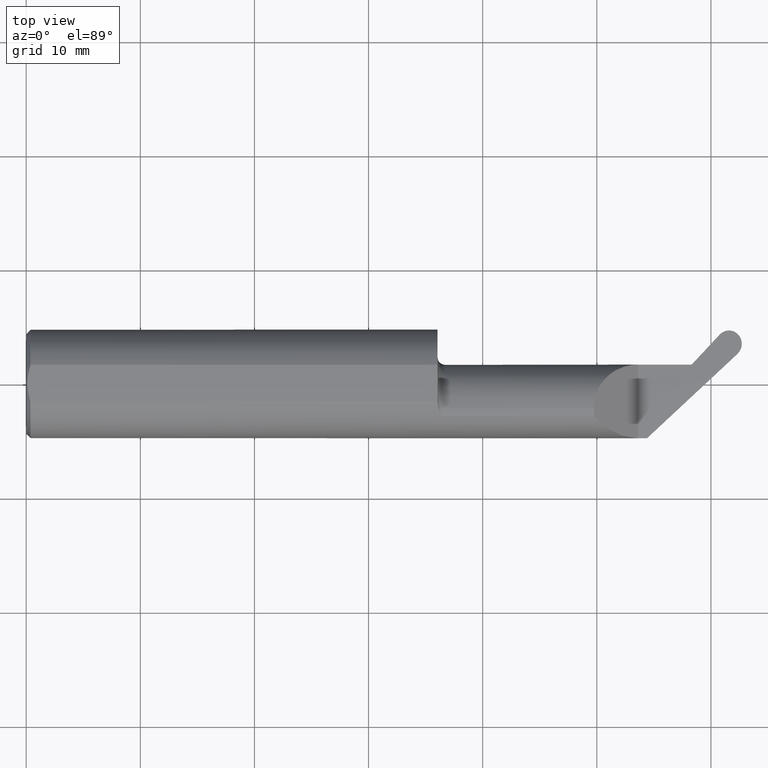
[diagram: clean part render]
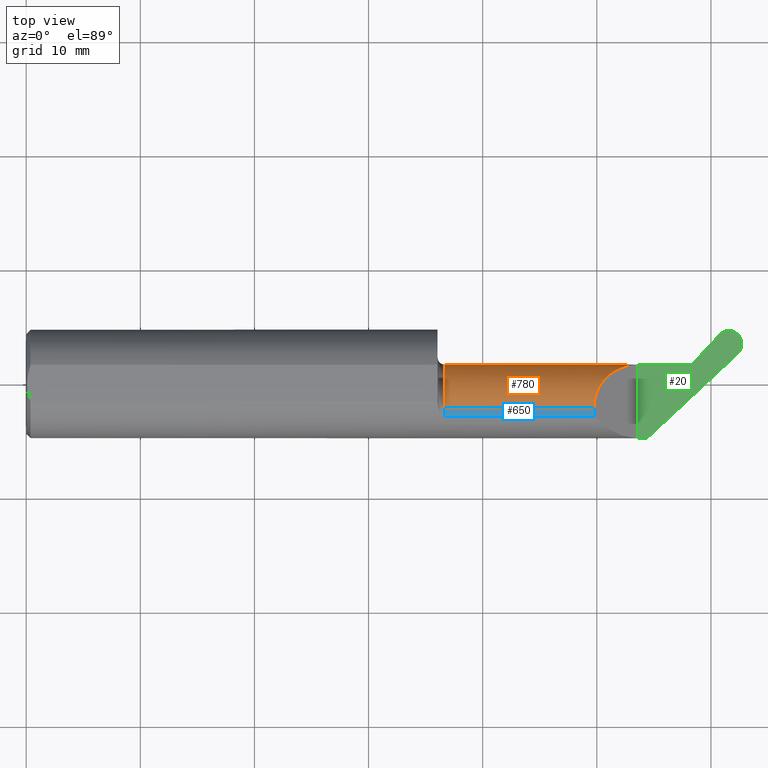
[diagram: same view with three faces highlighted in distinct colors, each labeled with its STEP entity id]
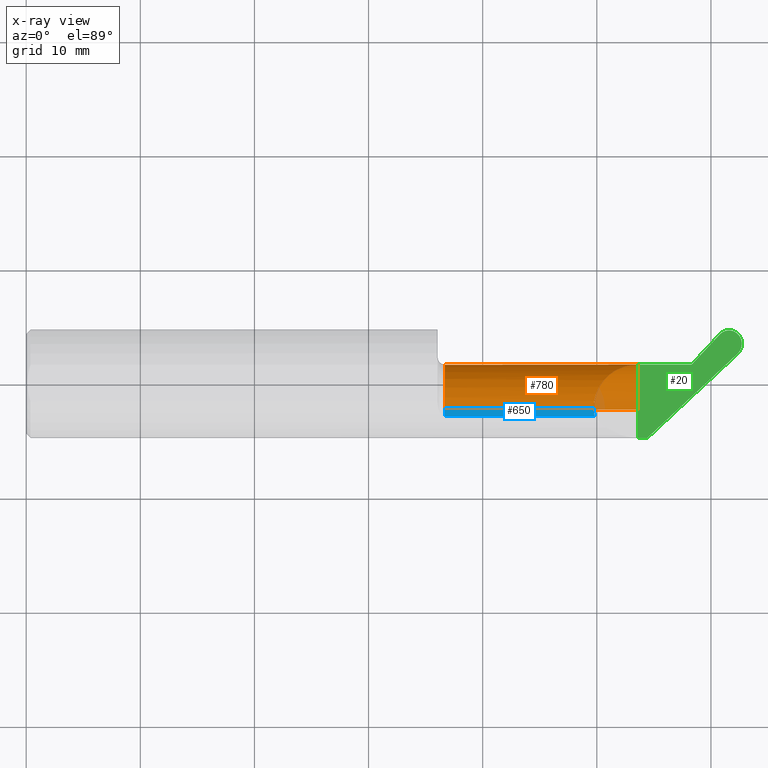
[diagram: x-ray of the same camera — body ghosted, the three highlighted faces saturated]
A machine part, top view with three faces highlighted in distinct colors.
The next image is the same camera in x-ray (body ghosted, the three faces saturated) — at least one of them is partly hidden behind the body in this view.
Their STEP definitions:

[orange] entity #780 — the highlighted cylindrical surface (partial cylindrical patch) has radius 3.8608 mm, axis along (-1, -0, -0).
#4 = CARTESIAN_POINT ( 'NONE',  ( 1.958000000000002183, -0.08534999999999998144, 0.1519999999999997464 ) ) ;
#6 = ORIENTED_EDGE ( 'NONE', *, *, #631, .F. ) ;
#11 = CARTESIAN_POINT ( 'NONE',  ( 2.287349474387791570, 0.02598289541875655612, -0.1039642947416341973 ) ) ;
#25 = ORIENTED_EDGE ( 'NONE', *, *, #809, .F. ) ;
#30 = CARTESIAN_POINT ( 'NONE',  ( 1.418999999999999817, -0.08534999999999998144, 0.000000000000000000 ) ) ;
#36 = VERTEX_POINT ( 'NONE', #76 ) ;
#38 = CIRCLE ( 'NONE', #117, 0.1519999999999995244 ) ;
#45 = EDGE_CURVE ( 'NONE', #412, #550, #520, .T. ) ;
#55 = DIRECTION ( 'NONE',  ( 1.000000000000000000, 0.000000000000000000, 0.000000000000000000 ) ) ;
#76 = CARTESIAN_POINT ( 'NONE',  ( 1.443999999999999728, -0.08534999999999998144, 0.1519999999999995244 ) ) ;
#78 = CARTESIAN_POINT ( 'NONE',  ( 2.280379455643574360, 0.05827565579094865639, -0.05003292284399111362 ) ) ;
#82 = CARTESIAN_POINT ( 'NONE',  ( 2.280427946748677659, 0.04467455014931607377, -0.07890578795393554667 ) ) ;
#87 = CARTESIAN_POINT ( 'NONE',  ( 2.223473614970375323, -0.01130468545544801272, -0.1378432170487052522 ) ) ;
#96 =( BOUNDED_CURVE ( )  B_SPLINE_CURVE ( 3, ( #822, #214, #144, #522 ),
 .UNSPECIFIED., .F., .F. ) 
 B_SPLINE_CURVE_WITH_KNOTS ( ( 4, 4 ),
 ( 1.523084436873743508, 1.538444393020995671 ),
 .UNSPECIFIED. ) 
 CURVE ( )  GEOMETRIC_REPRESENTATION_ITEM ( )  RATIONAL_B_SPLINE_CURVE ( ( 1.000000000000000000, 0.9999803394088983000, 0.9999803394088983000, 1.000000000000000000 ) ) 
 REPRESENTATION_ITEM ( '' )  );
#100 = CARTESIAN_POINT ( 'NONE',  ( 2.020960461480711956, 0.06664999999999977887, 0.08903953851928939067 ) ) ;
#106 = CARTESIAN_POINT ( 'NONE',  ( 2.245806022198207241, -0.08301537846867715342, -0.1519820698053077346 ) ) ;
#107 = CARTESIAN_POINT ( 'NONE',  ( 2.294235200014954845, 0.02365255206875971003, -0.1059921091525870690 ) ) ;
#117 = AXIS2_PLACEMENT_3D ( 'NONE', #533, #684, #805 ) ;
#126 = ORIENTED_EDGE ( 'NONE', *, *, #363, .T. ) ;
#132 = EDGE_CURVE ( 'NONE', #597, #412, #435, .T. ) ;
#141 = CARTESIAN_POINT ( 'NONE',  ( 2.291385060332452817, 0.01870869955985384955, -0.1107961508623450386 ) ) ;
#144 = CARTESIAN_POINT ( 'NONE',  ( 2.244970942544508130, -0.08379353209400738911, -0.1519940231509273043 ) ) ;
#148 = CARTESIAN_POINT ( 'NONE',  ( 2.287202422033008276, 0.06572839334873611938, -0.01965257165043610491 ) ) ;
#150 = CARTESIAN_POINT ( 'NONE',  ( 2.279583975438843169, 0.04989058623087169742, -0.06958800794744457452 ) ) ;
#166 = DIRECTION ( 'NONE',  ( 0.000000000000000000, 0.000000000000000000, 1.000000000000000000 ) ) ;
#180 = LINE ( 'NONE', #430, #184 ) ;
#184 = VECTOR ( 'NONE', #814, 39.37007874015748143 ) ;
#185 =( BOUNDED_CURVE ( )  B_SPLINE_CURVE ( 3, ( #657, #237, #100, #221 ),
 .UNSPECIFIED., .F., .T. ) 
 B_SPLINE_CURVE_WITH_KNOTS ( ( 4, 4 ),
 ( 0.000000000000000000, 1.570796326794896780 ),
 .UNSPECIFIED. ) 
 CURVE ( )  GEOMETRIC_REPRESENTATION_ITEM ( )  RATIONAL_B_SPLINE_CURVE ( ( 1.000000000000000000, 0.8047378541243649375, 0.8047378541243649375, 1.000000000000000000 ) ) 
 REPRESENTATION_ITEM ( '' )  );
#194 = ORIENTED_EDGE ( 'NONE', *, *, #132, .T. ) ;
#199 = AXIS2_PLACEMENT_3D ( 'NONE', #792, #653, #585 ) ;
#205 = CARTESIAN_POINT ( 'NONE',  ( 2.283095476919919875, 0.06268864236261705025, -0.03486095946414631552 ) ) ;
#207 = CARTESIAN_POINT ( 'NONE',  ( 2.279473615810516218, 0.05227606614710268024, -0.06473972895884107237 ) ) ;
#214 = CARTESIAN_POINT ( 'NONE',  ( 2.244136095074108272, -0.08457175457142981911, -0.1519999999999997464 ) ) ;
#216 = EDGE_CURVE ( 'NONE', #690, #310, #299, .T. ) ;
#221 = CARTESIAN_POINT ( 'NONE',  ( 2.110000000000000320, 0.06664999999999975111, -4.745349621061712245E-17 ) ) ;
#237 = CARTESIAN_POINT ( 'NONE',  ( 1.958000000000001961, 0.003689538519289418776, 0.1519999999999997464 ) ) ;
#238 = CARTESIAN_POINT ( 'NONE',  ( 2.245806022198207241, -0.08301537846867715342, -0.1519820698053077346 ) ) ;
#245 = CARTESIAN_POINT ( 'NONE',  ( 2.291385060332452817, 0.01870869955985384955, -0.1107961508623450386 ) ) ;
#246 = VERTEX_POINT ( 'NONE', #238 ) ;
#256 = VECTOR ( 'NONE', #55, 39.37007874015748143 ) ;
#263 = LINE ( 'NONE', #618, #256 ) ;
#281 = CARTESIAN_POINT ( 'NONE',  ( 2.279873855441354902, 0.05645629897935491859, -0.05498308975101971752 ) ) ;
#285 = DIRECTION ( 'NONE',  ( -1.000000000000000000, -0.000000000000000000, -0.000000000000000000 ) ) ;
#294 = EDGE_LOOP ( 'NONE', ( #6, #346, #399, #386, #527, #126, #566, #194, #545, #25 ) ) ;
#299 = LINE ( 'NONE', #552, #502 ) ;
#310 = VERTEX_POINT ( 'NONE', #322 ) ;
#313 = CARTESIAN_POINT ( 'NONE',  ( 2.295498185246933165, 0.02599910668799065849, -0.1034667890668074935 ) ) ;
#322 = CARTESIAN_POINT ( 'NONE',  ( 1.443999999999999728, -0.08534999999999996756, -0.1519999999999995244 ) ) ;
#327 = CARTESIAN_POINT ( 'NONE',  ( 2.290939857652344536, 0.06665000000000032010, -0.009735860034133701768 ) ) ;
#329 = B_SPLINE_CURVE_WITH_KNOTS ( 'NONE', 3,
 ( #464, #327, #148, #205, #455, #78, #281, #207, #150, #82, #714, #576, #11, #141 ),
 .UNSPECIFIED., .F., .F.,
 ( 4, 2, 2, 2, 2, 2, 4 ),
 ( 4.909446767476300298E-17, 0.0008101701905472911925, 0.001215255285820915051, 0.001620340381094539017, 0.002025425476368162767, 0.002430510571641786733, 0.003240680762189030329 ),
 .UNSPECIFIED. ) ;
#344 = CARTESIAN_POINT ( 'NONE',  ( 2.291385060332452817, 0.01870869955985384955, -0.1107961508623450386 ) ) ;
#346 = ORIENTED_EDGE ( 'NONE', *, *, #216, .T. ) ;
#350 = VERTEX_POINT ( 'NONE', #4 ) ;
#353 = CARTESIAN_POINT ( 'NONE',  ( 2.292863629530563330, 0.02122147899315567424, -0.1084361721259468891 ) ) ;
#363 = EDGE_CURVE ( 'NONE', #764, #625, #263, .T. ) ;
#386 = ORIENTED_EDGE ( 'NONE', *, *, #388, .F. ) ;
#388 = EDGE_CURVE ( 'NONE', #350, #36, #180, .T. ) ;
#396 = CARTESIAN_POINT ( 'NONE',  ( 2.243301529027790231, -0.08534999999999996756, -0.1519999999999997464 ) ) ;
#399 = ORIENTED_EDGE ( 'NONE', *, *, #483, .F. ) ;
#412 = VERTEX_POINT ( 'NONE', #313 ) ;
#430 = CARTESIAN_POINT ( 'NONE',  ( 1.418999999999999817, -0.08534999999999998144, 0.1519999999999997464 ) ) ;
#435 =( BOUNDED_CURVE ( )  B_SPLINE_CURVE ( 3, ( #344, #353, #107, #803 ),
 .UNSPECIFIED., .F., .T. ) 
 B_SPLINE_CURVE_WITH_KNOTS ( ( 4, 4 ),
 ( 2.699207237110223367, 2.767232025981897436 ),
 .UNSPECIFIED. ) 
 CURVE ( )  GEOMETRIC_REPRESENTATION_ITEM ( )  RATIONAL_B_SPLINE_CURVE ( ( 1.000000000000000000, 0.9996144228480821070, 0.9996144228480821070, 1.000000000000000000 ) ) 
 REPRESENTATION_ITEM ( '' )  );
#455 = CARTESIAN_POINT ( 'NONE',  ( 2.281983674875784907, 0.06138847945356162156, -0.03999301210648562727 ) ) ;
#464 = CARTESIAN_POINT ( 'NONE',  ( 2.295498185246931833, 0.06665000000000129154, 6.897916184002264281E-15 ) ) ;
#467 = DIRECTION ( 'NONE',  ( -1.000000000000000000, -0.000000000000000000, -0.000000000000000000 ) ) ;
#483 = EDGE_CURVE ( 'NONE', #36, #310, #38, .T. ) ;
#486 = CARTESIAN_POINT ( 'NONE',  ( 2.295498185246933165, 0.01630758347669121477, -0.1130032553587707322 ) ) ;
#491 =( BOUNDED_CURVE ( )  B_SPLINE_CURVE ( 3, ( #106, #608, #87, #486 ),
 .UNSPECIFIED., .F., .T. ) 
 B_SPLINE_CURVE_WITH_KNOTS ( ( 4, 4 ),
 ( 6.032891173591473866, 6.750124571375730298 ),
 .UNSPECIFIED. ) 
 CURVE ( )  GEOMETRIC_REPRESENTATION_ITEM ( )  RATIONAL_B_SPLINE_CURVE ( ( 1.000000000000000000, 0.9575888196201810532, 0.9575888196201810532, 1.000000000000000000 ) ) 
 REPRESENTATION_ITEM ( '' )  );
#502 = VECTOR ( 'NONE', #467, 39.37007874015748143 ) ;
#520 = CIRCLE ( 'NONE', #199, 0.1519999999999999407 ) ;
#522 = CARTESIAN_POINT ( 'NONE',  ( 2.245806022198207241, -0.08301537846867715342, -0.1519820698053077346 ) ) ;
#527 = ORIENTED_EDGE ( 'NONE', *, *, #807, .T. ) ;
#533 = CARTESIAN_POINT ( 'NONE',  ( 1.443999999999999728, -0.08534999999999998144, 0.000000000000000000 ) ) ;
#542 = CARTESIAN_POINT ( 'NONE',  ( 2.110000000000000320, 0.06664999999999975111, -4.745349621061712245E-17 ) ) ;
#545 = ORIENTED_EDGE ( 'NONE', *, *, #45, .T. ) ;
#550 = VERTEX_POINT ( 'NONE', #689 ) ;
#552 = CARTESIAN_POINT ( 'NONE',  ( 1.418999999999999817, -0.08534999999999996756, -0.1519999999999997464 ) ) ;
#566 = ORIENTED_EDGE ( 'NONE', *, *, #668, .T. ) ;
#576 = CARTESIAN_POINT ( 'NONE',  ( 2.284173398886063300, 0.03282998080076148656, -0.09615879041668785876 ) ) ;
#585 = DIRECTION ( 'NONE',  ( 0.000000000000000000, 0.000000000000000000, 1.000000000000000000 ) ) ;
#597 = VERTEX_POINT ( 'NONE', #245 ) ;
#608 = CARTESIAN_POINT ( 'NONE',  ( 2.206175946064690141, -0.04587866261917598193, -0.1514116066149067963 ) ) ;
#618 = CARTESIAN_POINT ( 'NONE',  ( 1.418999999999999817, 0.06664999999999975111, -4.745349621061712245E-17 ) ) ;
#625 = VERTEX_POINT ( 'NONE', #753 ) ;
#631 = EDGE_CURVE ( 'NONE', #690, #246, #96, .T. ) ;
#646 = AXIS2_PLACEMENT_3D ( 'NONE', #30, #285, #166 ) ;
#653 = DIRECTION ( 'NONE',  ( -1.000000000000000000, -0.000000000000000000, -0.000000000000000000 ) ) ;
#657 = CARTESIAN_POINT ( 'NONE',  ( 1.958000000000002183, -0.08534999999999998144, 0.1519999999999997464 ) ) ;
#668 = EDGE_CURVE ( 'NONE', #625, #597, #329, .T. ) ;
#684 = DIRECTION ( 'NONE',  ( -1.000000000000000000, -0.000000000000000000, -0.000000000000000000 ) ) ;
#689 = CARTESIAN_POINT ( 'NONE',  ( 2.295498185246933165, 0.01630758347669121477, -0.1130032553587707322 ) ) ;
#690 = VERTEX_POINT ( 'NONE', #396 ) ;
#714 = CARTESIAN_POINT ( 'NONE',  ( 2.281153022474290637, 0.04185901539785338160, -0.08336139160682327909 ) ) ;
#753 = CARTESIAN_POINT ( 'NONE',  ( 2.295498185246931833, 0.06665000000000129154, 6.897916184002264281E-15 ) ) ;
#764 = VERTEX_POINT ( 'NONE', #542 ) ;
#780 = ADVANCED_FACE ( 'NONE', ( #802 ), #798, .T. ) ;
#792 = CARTESIAN_POINT ( 'NONE',  ( 2.295498185246933165, -0.08534999999999998144, 0.000000000000000000 ) ) ;
#798 = CYLINDRICAL_SURFACE ( 'NONE', #646, 0.1519999999999997464 ) ;
#802 = FACE_OUTER_BOUND ( 'NONE', #294, .T. ) ;
#803 = CARTESIAN_POINT ( 'NONE',  ( 2.295498185246933165, 0.02599910668799065849, -0.1034667890668074935 ) ) ;
#805 = DIRECTION ( 'NONE',  ( 0.000000000000000000, 0.000000000000000000, 1.000000000000000000 ) ) ;
#807 = EDGE_CURVE ( 'NONE', #350, #764, #185, .T. ) ;
#809 = EDGE_CURVE ( 'NONE', #246, #550, #491, .T. ) ;
#814 = DIRECTION ( 'NONE',  ( -1.000000000000000000, -0.000000000000000000, -0.000000000000000000 ) ) ;
#822 = CARTESIAN_POINT ( 'NONE',  ( 2.243301529027790231, -0.08534999999999996756, -0.1519999999999997464 ) ) ;

[blue] entity #650 — the highlighted cylindrical surface (partial cylindrical patch) has radius 3.8608 mm, axis along (-1, -0, -0).
#1 = CIRCLE ( 'NONE', #787, 0.1519999999999995244 ) ;
#4 = CARTESIAN_POINT ( 'NONE',  ( 1.958000000000002183, -0.08534999999999998144, 0.1519999999999997464 ) ) ;
#36 = VERTEX_POINT ( 'NONE', #76 ) ;
#76 = CARTESIAN_POINT ( 'NONE',  ( 1.443999999999999728, -0.08534999999999998144, 0.1519999999999995244 ) ) ;
#84 = EDGE_LOOP ( 'NONE', ( #169, #474, #801, #754 ) ) ;
#104 = AXIS2_PLACEMENT_3D ( 'NONE', #392, #711, #453 ) ;
#143 = VECTOR ( 'NONE', #560, 39.37007874015748143 ) ;
#155 = CARTESIAN_POINT ( 'NONE',  ( 1.443999999999999728, -0.1129504686584655998, 0.1494731217638572973 ) ) ;
#169 = ORIENTED_EDGE ( 'NONE', *, *, #820, .T. ) ;
#180 = LINE ( 'NONE', #430, #184 ) ;
#184 = VECTOR ( 'NONE', #814, 39.37007874015748143 ) ;
#192 = CARTESIAN_POINT ( 'NONE',  ( 1.869749092623466558, -0.1129504686584655859, 0.1494731217638575194 ) ) ;
#235 = VERTEX_POINT ( 'NONE', #155 ) ;
#257 = EDGE_CURVE ( 'NONE', #235, #36, #1, .T. ) ;
#283 = CARTESIAN_POINT ( 'NONE',  ( 1.958844637866757887, -0.1038401262696877492, 0.1511553621332438202 ) ) ;
#303 = DIRECTION ( 'NONE',  ( 0.000000000000000000, 0.000000000000000000, 1.000000000000000000 ) ) ;
#326 = LINE ( 'NONE', #192, #143 ) ;
#341 = CARTESIAN_POINT ( 'NONE',  ( 1.960526878236144244, -0.1129504686584655582, 0.1494731217638575471 ) ) ;
#347 = CARTESIAN_POINT ( 'NONE',  ( 1.958000000000002183, -0.08534999999999998144, 0.1519999999999997464 ) ) ;
#350 = VERTEX_POINT ( 'NONE', #4 ) ;
#352 = CARTESIAN_POINT ( 'NONE',  ( 1.960526878236144244, -0.1129504686584655582, 0.1494731217638575471 ) ) ;
#387 = EDGE_CURVE ( 'NONE', #235, #782, #326, .T. ) ;
#388 = EDGE_CURVE ( 'NONE', #350, #36, #180, .T. ) ;
#392 = CARTESIAN_POINT ( 'NONE',  ( 1.418999999999999817, -0.08534999999999998144, 0.000000000000000000 ) ) ;
#400 = CYLINDRICAL_SURFACE ( 'NONE', #104, 0.1519999999999997464 ) ;
#415 = DIRECTION ( 'NONE',  ( -1.000000000000000000, -0.000000000000000000, -0.000000000000000000 ) ) ;
#430 = CARTESIAN_POINT ( 'NONE',  ( 1.418999999999999817, -0.08534999999999998144, 0.1519999999999997464 ) ) ;
#438 = FACE_OUTER_BOUND ( 'NONE', #84, .T. ) ;
#453 = DIRECTION ( 'NONE',  ( 0.000000000000000000, 0.000000000000000000, 1.000000000000000000 ) ) ;
#474 = ORIENTED_EDGE ( 'NONE', *, *, #388, .T. ) ;
#560 = DIRECTION ( 'NONE',  ( 1.000000000000000000, 0.000000000000000000, 0.000000000000000000 ) ) ;
#592 = CARTESIAN_POINT ( 'NONE',  ( 1.958000000000001961, -0.09461435486697029884, 0.1519999999999997464 ) ) ;
#650 = ADVANCED_FACE ( 'NONE', ( #438 ), #400, .T. ) ;
#659 =( BOUNDED_CURVE ( )  B_SPLINE_CURVE ( 3, ( #341, #283, #592, #347 ),
 .UNSPECIFIED., .F., .T. ) 
 B_SPLINE_CURVE_WITH_KNOTS ( ( 4, 4 ),
 ( 6.100590318874937523, 6.283185307179586232 ),
 .UNSPECIFIED. ) 
 CURVE ( )  GEOMETRIC_REPRESENTATION_ITEM ( )  RATIONAL_B_SPLINE_CURVE ( ( 1.000000000000000000, 0.9972235185427065218, 0.9972235185427065218, 1.000000000000000000 ) ) 
 REPRESENTATION_ITEM ( '' )  );
#683 = CARTESIAN_POINT ( 'NONE',  ( 1.443999999999999728, -0.08534999999999998144, 0.000000000000000000 ) ) ;
#711 = DIRECTION ( 'NONE',  ( -1.000000000000000000, -0.000000000000000000, -0.000000000000000000 ) ) ;
#754 = ORIENTED_EDGE ( 'NONE', *, *, #387, .T. ) ;
#782 = VERTEX_POINT ( 'NONE', #352 ) ;
#787 = AXIS2_PLACEMENT_3D ( 'NONE', #683, #415, #303 ) ;
#801 = ORIENTED_EDGE ( 'NONE', *, *, #257, .F. ) ;
#814 = DIRECTION ( 'NONE',  ( -1.000000000000000000, -0.000000000000000000, -0.000000000000000000 ) ) ;
#820 = EDGE_CURVE ( 'NONE', #782, #350, #659, .T. ) ;

[green] entity #20 — the highlighted planar face has unit normal (-0, 0, -1).
#7 = CARTESIAN_POINT ( 'NONE',  ( 2.459150679524237493, 0.1673160262446010960, -4.745349621061711013E-17 ) ) ;
#18 = LINE ( 'NONE', #274, #645 ) ;
#20 = ADVANCED_FACE ( 'NONE', ( #272 ), #149, .F. ) ;
#22 = DIRECTION ( 'NONE',  ( -0.000000000000000000, 0.000000000000000000, -1.000000000000000000 ) ) ;
#28 = CARTESIAN_POINT ( 'NONE',  ( 2.110000000000000320, 0.2000000000000000111, -4.745349621061712245E-17 ) ) ;
#40 = EDGE_CURVE ( 'NONE', #625, #160, #151, .T. ) ;
#41 = DIRECTION ( 'NONE',  ( -0.7313537016191670181, -0.6819983600625021403, 0.000000000000000000 ) ) ;
#55 = DIRECTION ( 'NONE',  ( 1.000000000000000000, 0.000000000000000000, 0.000000000000000000 ) ) ;
#59 = CARTESIAN_POINT ( 'NONE',  ( 2.412939514550387354, 0.1832132320828752381, -4.745349621061713478E-17 ) ) ;
#66 = CARTESIAN_POINT ( 'NONE',  ( 2.462948512015037394, 0.1122332209985757029, -4.745349621061714094E-17 ) ) ;
#89 = VECTOR ( 'NONE', #401, 39.37007874015748143 ) ;
#99 = EDGE_CURVE ( 'NONE', #306, #764, #18, .T. ) ;
#114 = CARTESIAN_POINT ( 'NONE',  ( 2.421900168475062731, 0.1847030690656938923, -4.745349621061711013E-17 ) ) ;
#120 = CARTESIAN_POINT ( 'NONE',  ( 2.500000000000000000, -0.1873499999999999888, -4.745349621061712245E-17 ) ) ;
#127 = EDGE_CURVE ( 'NONE', #519, #439, #397, .T. ) ;
#129 = CARTESIAN_POINT ( 'NONE',  ( 2.448247125996610318, 0.1779496906190708161, -4.745349621061712862E-17 ) ) ;
#149 = PLANE ( 'NONE',  #774 ) ;
#151 = LINE ( 'NONE', #644, #89 ) ;
#160 = VERTEX_POINT ( 'NONE', #740 ) ;
#176 = CARTESIAN_POINT ( 'NONE',  ( 2.464046142391617789, 0.1595728746997062963, -4.745349621061710396E-17 ) ) ;
#190 = ORIENTED_EDGE ( 'NONE', *, *, #357, .T. ) ;
#196 = CARTESIAN_POINT ( 'NONE',  ( 2.453681397116281637, 0.1035746854946826417, 0.000000000000000000 ) ) ;
#249 = CARTESIAN_POINT ( 'NONE',  ( 2.409969705838291176, 0.1822624000708659986, -4.745349621061712245E-17 ) ) ;
#256 = VECTOR ( 'NONE', #55, 39.37007874015748143 ) ;
#259 = CARTESIAN_POINT ( 'NONE',  ( 2.418877000881054062, 0.1844214487105629297, -4.745349621061712245E-17 ) ) ;
#263 = LINE ( 'NONE', #618, #256 ) ;
#272 = FACE_OUTER_BOUND ( 'NONE', #635, .T. ) ;
#274 = CARTESIAN_POINT ( 'NONE',  ( 2.110000000000000320, 0.2000000000000000111, -4.745349621061712245E-17 ) ) ;
#284 = ORIENTED_EDGE ( 'NONE', *, *, #99, .F. ) ;
#306 = VERTEX_POINT ( 'NONE', #548 ) ;
#308 = CARTESIAN_POINT ( 'NONE',  ( 2.392332127941882547, 0.1704916902143812918, -4.745349621061712245E-17 ) ) ;
#351 = VECTOR ( 'NONE', #41, 39.37007874015748143 ) ;
#357 = EDGE_CURVE ( 'NONE', #519, #160, #660, .T. ) ;
#363 = EDGE_CURVE ( 'NONE', #764, #625, #263, .T. ) ;
#371 = ORIENTED_EDGE ( 'NONE', *, *, #40, .F. ) ;
#373 = DIRECTION ( 'NONE',  ( -1.000000000000000000, -0.000000000000000000, -0.000000000000000000 ) ) ;
#374 = ORIENTED_EDGE ( 'NONE', *, *, #127, .F. ) ;
#377 = CARTESIAN_POINT ( 'NONE',  ( 2.141702867418015188, -0.1873500000000000443, -1.894185036436226334E-18 ) ) ;
#384 = CARTESIAN_POINT ( 'NONE',  ( 2.401556492840640988, 0.1785878545954148744, -4.745349621061712862E-17 ) ) ;
#397 = LINE ( 'NONE', #482, #351 ) ;
#398 = EDGE_CURVE ( 'NONE', #439, #306, #692, .T. ) ;
#401 = DIRECTION ( 'NONE',  ( 0.6819983600625172393, 0.7313537016191530293, 0.000000000000000000 ) ) ;
#426 = CARTESIAN_POINT ( 'NONE',  ( 2.431132944543108465, 0.1845804662549478947, -4.745349621061713478E-17 ) ) ;
#439 = VERTEX_POINT ( 'NONE', #377 ) ;
#470 = VECTOR ( 'NONE', #373, 39.37007874015748143 ) ;
#482 = CARTESIAN_POINT ( 'NONE',  ( 2.169027510930384040, -0.1618693577013822493, 0.000000000000000000 ) ) ;
#497 = CARTESIAN_POINT ( 'NONE',  ( 2.396612101652687787, 0.1750725674738587145, -4.745349621061712245E-17 ) ) ;
#519 = VERTEX_POINT ( 'NONE', #674 ) ;
#525 = DIRECTION ( 'NONE',  ( -0.000000000000000000, 1.000000000000000000, -0.000000000000000000 ) ) ;
#539 = ORIENTED_EDGE ( 'NONE', *, *, #363, .F. ) ;
#542 = CARTESIAN_POINT ( 'NONE',  ( 2.110000000000000320, 0.06664999999999975111, -4.745349621061712245E-17 ) ) ;
#548 = CARTESIAN_POINT ( 'NONE',  ( 2.110000000000000320, -0.1873499999999999888, -4.745349621061712245E-17 ) ) ;
#564 = CARTESIAN_POINT ( 'NONE',  ( 2.453023454077044363, 0.1743257750947057871, -4.745349621061711013E-17 ) ) ;
#572 = CARTESIAN_POINT ( 'NONE',  ( 2.468948349295943867, 0.1423946562678062300, -4.745349621061712245E-17 ) ) ;
#618 = CARTESIAN_POINT ( 'NONE',  ( 1.418999999999999817, 0.06664999999999975111, -4.745349621061712245E-17 ) ) ;
#625 = VERTEX_POINT ( 'NONE', #753 ) ;
#633 = CARTESIAN_POINT ( 'NONE',  ( 2.461000637495215582, 0.1647710970771330552, -4.745349621061710396E-17 ) ) ;
#635 = EDGE_LOOP ( 'NONE', ( #374, #190, #371, #539, #284, #790 ) ) ;
#644 = CARTESIAN_POINT ( 'NONE',  ( 2.153755892154001650, -0.08534999999999998144, -4.745349621061712245E-17 ) ) ;
#645 = VECTOR ( 'NONE', #525, 39.37007874015748143 ) ;
#660 = B_SPLINE_CURVE_WITH_KNOTS ( 'NONE', 3,
 ( #196, #66, #767, #572, #688, #176, #633, #7, #564, #129, #706, #426, #114, #259, #59, #249, #384, #497, #308 ),
 .UNSPECIFIED., .F., .F.,
 ( 4, 2, 1, 2, 2, 2, 2, 2, 2, 4 ),
 ( 0.000000000000000000, 0.2499999999999992228, 0.3749999999999986677, 0.4374999999999997224, 0.5000000000000007772, 0.6249999999999992228, 0.7499999999999977796, 0.8124999999999970024, 0.8749999999999963363, 1.000000000000000000 ),
 .UNSPECIFIED. ) ;
#674 = CARTESIAN_POINT ( 'NONE',  ( 2.453681397116281637, 0.1035746854946826417, 0.000000000000000000 ) ) ;
#688 = CARTESIAN_POINT ( 'NONE',  ( 2.467767538179244990, 0.1514588308736423417, -4.745349621061713478E-17 ) ) ;
#692 = LINE ( 'NONE', #120, #470 ) ;
#706 = CARTESIAN_POINT ( 'NONE',  ( 2.437052053565827325, 0.1832211629119944174, -4.745349621061714094E-17 ) ) ;
#726 = DIRECTION ( 'NONE',  ( -1.000000000000000000, 0.000000000000000000, 0.000000000000000000 ) ) ;
#740 = CARTESIAN_POINT ( 'NONE',  ( 2.392332127941882547, 0.1704916902143812918, -4.745349621061712245E-17 ) ) ;
#753 = CARTESIAN_POINT ( 'NONE',  ( 2.295498185246931833, 0.06665000000000129154, 6.897916184002264281E-15 ) ) ;
#764 = VERTEX_POINT ( 'NONE', #542 ) ;
#767 = CARTESIAN_POINT ( 'NONE',  ( 2.467922525301445624, 0.1229994660164385883, -4.745349621061712245E-17 ) ) ;
#774 = AXIS2_PLACEMENT_3D ( 'NONE', #28, #22, #726 ) ;
#790 = ORIENTED_EDGE ( 'NONE', *, *, #398, .F. ) ;